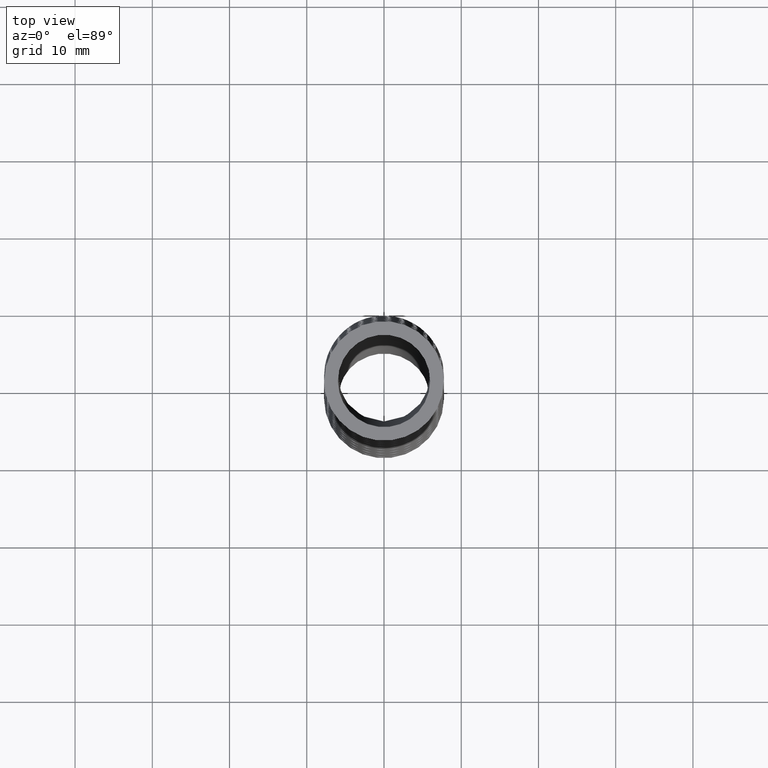
[diagram: clean part render]
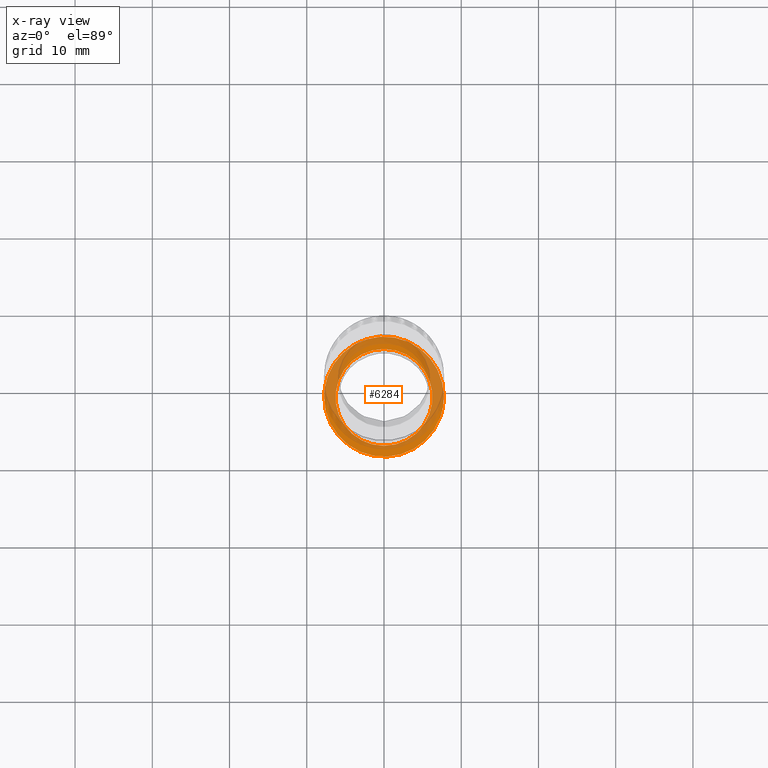
[diagram: x-ray — body ghosted, one internal face saturated and labeled with its STEP entity id]
A machine part, top view, then the same camera in x-ray: the body is ghosted and one INTERNAL B-rep face — a face not visible from any outside direction — is saturated and labeled: STEP entity #6284.
In plain terms, the highlighted planar face has unit normal (0, 0, -1).
Its self-contained STEP definition (entity closure, byte-faithful):
#2367 = DIRECTION ( 'NONE',  ( 0.0000000000000000000, -1.000000000000000000, 0.0000000000000000000 ) ) ;
#2368 = DIRECTION ( 'NONE',  ( 0.0000000000000000000, -1.734723475976807100E-018, 1.000000000000000000 ) ) ;
#2369 = CARTESIAN_POINT ( 'NONE',  ( 0.0000000000000000000, -0.02359756194168900400, -3.466374445932213900 ) ) ;
#2370 = AXIS2_PLACEMENT_3D ( 'NONE', #2369, #2368, #2367 ) ;
#2371 = CIRCLE ( 'NONE', #2370, 0.2470000000000000300 ) ;
#3394 = DIRECTION ( 'NONE',  ( 0.0000000000000000000, -1.000000000000000000, 0.0000000000000000000 ) ) ;
#3395 = DIRECTION ( 'NONE',  ( 0.0000000000000000000, -1.734723475976807100E-018, 1.000000000000000000 ) ) ;
#3396 = CARTESIAN_POINT ( 'NONE',  ( 0.0000000000000000000, -0.02359756194168900400, -3.466374445932213900 ) ) ;
#3397 = AXIS2_PLACEMENT_3D ( 'NONE', #3396, #3395, #3394 ) ;
#3398 = CIRCLE ( 'NONE', #3397, 0.2470000000000000300 ) ;
#3553 = CARTESIAN_POINT ( 'NONE',  ( 3.024877593893962500E-017, 0.2234024380583110300, -3.466374445932213900 ) ) ;
#4572 = EDGE_CURVE ( 'NONE', #10300, #5046, #3398, .T. ) ;
#5046 = VERTEX_POINT ( 'NONE', #3553 ) ;
#6284 = ADVANCED_FACE ( 'NONE', ( #8341, #8340 ), #8376, .T. ) ;
#6285 = EDGE_LOOP ( 'NONE', ( #14098, #14081 ) ) ;
#6367 = EDGE_CURVE ( 'NONE', #6385, #6382, #9157, .T. ) ;
#6382 = VERTEX_POINT ( 'NONE', #9361 ) ;
#6384 = EDGE_CURVE ( 'NONE', #6382, #6385, #9355, .T. ) ;
#6385 = VERTEX_POINT ( 'NONE', #9356 ) ;
#8340 = FACE_BOUND ( 'NONE', #14077, .T. ) ;
#8341 = FACE_OUTER_BOUND ( 'NONE', #6285, .T. ) ;
#8371 = DIRECTION ( 'NONE',  ( 0.0000000000000000000, 1.000000000000000000, 1.734723475976807100E-018 ) ) ;
#8372 = DIRECTION ( 'NONE',  ( 0.0000000000000000000, 1.734723475976807100E-018, -1.000000000000000000 ) ) ;
#8373 = CARTESIAN_POINT ( 'NONE',  ( 0.0000000000000000000, 0.3234024380583110400, -3.466374445932213900 ) ) ;
#8374 = AXIS2_PLACEMENT_3D ( 'NONE', #8373, #8372, #8371 ) ;
#8376 = PLANE ( 'NONE',  #8374 ) ;
#9115 = CARTESIAN_POINT ( 'NONE',  ( -0.2953341967208995600, 0.05885292058401765700, -3.466374445932214300 ) ) ;
#9116 = CARTESIAN_POINT ( 'NONE',  ( -0.2894639623541568900, 0.07831984641472933300, -3.466374445932213900 ) ) ;
#9117 = CARTESIAN_POINT ( 'NONE',  ( -0.2742869207531394300, 0.1151676037808288400, -3.466374445932214300 ) ) ;
#9118 = CARTESIAN_POINT ( 'NONE',  ( -0.2649590302526772000, 0.1327637769153048600, -3.466374445932215700 ) ) ;
#9119 = CARTESIAN_POINT ( 'NONE',  ( -0.2482849405159347500, 0.1578816452282285300, -3.466374445932215200 ) ) ;
#9120 = CARTESIAN_POINT ( 'NONE',  ( -0.2422849057873740200, 0.1660158824454444100, -3.466374445932212100 ) ) ;
#9121 = CARTESIAN_POINT ( 'NONE',  ( -0.2296452051057519800, 0.1815017955388762100, -3.466374445932214300 ) ) ;
#9122 = CARTESIAN_POINT ( 'NONE',  ( -0.2163076218513716200, 0.1962967479261176800, -3.466374445932212100 ) ) ;
#9123 = CARTESIAN_POINT ( 'NONE',  ( -0.2015920494492031400, 0.2097273785895566200, -3.466374445932213900 ) ) ;
#9124 = CARTESIAN_POINT ( 'NONE',  ( -0.1861764149946350000, 0.2224648906840777100, -3.466374445932213900 ) ) ;
#9125 = CARTESIAN_POINT ( 'NONE',  ( -0.1780708934028668000, 0.2285173753068214800, -3.466374445932213900 ) ) ;
#9126 = CARTESIAN_POINT ( 'NONE',  ( -0.1530620977245558400, 0.2453252029853321700, -3.466374445932213900 ) ) ;
#9127 = CARTESIAN_POINT ( 'NONE',  ( -0.1355194047079776600, 0.2547465752425284700, -3.466374445932211700 ) ) ;
#9128 = CARTESIAN_POINT ( 'NONE',  ( -0.09873129131283563100, 0.2700987033475180100, -3.466374445932210300 ) ) ;
#9129 = CARTESIAN_POINT ( 'NONE',  ( -0.07927771645859775500, 0.2760463056129382500, -3.466374445932213000 ) ) ;
#9130 = CARTESIAN_POINT ( 'NONE',  ( -0.04013136145374155600, 0.2838868633901846000, -3.466374445932212600 ) ) ;
#9131 = CARTESIAN_POINT ( 'NONE',  ( -0.02033083927069707600, 0.2858672873397024600, -3.466374445932213000 ) ) ;
#9132 = CARTESIAN_POINT ( 'NONE',  ( 0.009714611423153609100, 0.2858969932460568900, -3.466374445932213000 ) ) ;
#9133 = CARTESIAN_POINT ( 'NONE',  ( 0.01983560887148149200, 0.2854049267824099700, -3.466374445932214300 ) ) ;
#9134 = CARTESIAN_POINT ( 'NONE',  ( 0.03978567261483918100, 0.2834390177268523700, -3.466374445932213900 ) ) ;
#9135 = CARTESIAN_POINT ( 'NONE',  ( 0.04965136926137964800, 0.2819699463872702400, -3.466374445932214300 ) ) ;
#9136 = CARTESIAN_POINT ( 'NONE',  ( 0.07892763478725883800, 0.2761363106370142700, -3.466374445932214300 ) ) ;
#9137 = CARTESIAN_POINT ( 'NONE',  ( 0.09804185709230833800, 0.2703505434983909900, -3.466374445932213900 ) ) ;
#9138 = CARTESIAN_POINT ( 'NONE',  ( 0.1352975809800245100, 0.2548741471099296700, -3.466374445932214300 ) ) ;
#9139 = CARTESIAN_POINT ( 'NONE',  ( 0.1528569294215112700, 0.2454302464850278400, -3.466374445932212100 ) ) ;
#9140 = CARTESIAN_POINT ( 'NONE',  ( 0.1776586499875840700, 0.2288103508245406300, -3.466374445932214300 ) ) ;
#9141 = CARTESIAN_POINT ( 'NONE',  ( 0.1856677661477955700, 0.2228583339252810900, -3.466374445932214800 ) ) ;
#9142 = CARTESIAN_POINT ( 'NONE',  ( 0.2011579319455160900, 0.2101113305720162000, -3.466374445932214300 ) ) ;
#9143 = CARTESIAN_POINT ( 'NONE',  ( 0.2086511020055242000, 0.2032959588486030200, -3.466374445932214300 ) ) ;
#9144 = CARTESIAN_POINT ( 'NONE',  ( 0.2298412764206448400, 0.1820246891803134800, -3.466374445932215200 ) ) ;
#9145 = CARTESIAN_POINT ( 'NONE',  ( 0.2424347763952640100, 0.1666223024957307300, -3.466374445932215200 ) ) ;
#9146 = CARTESIAN_POINT ( 'NONE',  ( 0.2645845366334839100, 0.1333978123500945400, -3.466374445932213900 ) ) ;
#9147 = CARTESIAN_POINT ( 'NONE',  ( 0.2741486995455962300, 0.1154495668783508100, -3.466374445932212100 ) ) ;
#9148 = CARTESIAN_POINT ( 'NONE',  ( 0.2893644159164062700, 0.07861431787374788300, -3.466374445932212100 ) ) ;
#9149 = CARTESIAN_POINT ( 'NONE',  ( 0.2951522356180876200, 0.05956345926882655000, -3.466374445932214300 ) ) ;
#9150 = CARTESIAN_POINT ( 'NONE',  ( 0.3010411723376814100, 0.03001549319134878500, -3.466374445932213900 ) ) ;
#9151 = CARTESIAN_POINT ( 'NONE',  ( 0.3025291086875504500, 0.02000727837224377000, -3.466374445932217000 ) ) ;
#9152 = CARTESIAN_POINT ( 'NONE',  ( 0.3045038661829661000, -9.559728961624198500E-006, -3.466374445932215200 ) ) ;
#9153 = CARTESIAN_POINT ( 'NONE',  ( 0.3049999999999999400, -0.01005887854946836500, -3.466374445932212600 ) ) ;
#9154 = CARTESIAN_POINT ( 'NONE',  ( 0.3049999999999999400, -0.02014950417578876800, -3.466374445932214300 ) ) ;
#9157 = B_SPLINE_CURVE_WITH_KNOTS ( 'NONE', 3,
 ( #9154, #9153, #9152, #9151, #9150, #9149, #9148, #9147, #9146, #9145, #9144, #9143, #9142, #9141, #9140, #9139, #9138, #9137, #9136, #9135, #9134, #9133, #9132, #9131, #9130, #9129, #9128, #9127, #9126, #9125, #9124, #9123, #9122, #9121, #9120, #9119, #9118, #9117, #9116, #9115, #9177, #9176, #9175 ),
 .UNSPECIFIED., .F., .F.,
 ( 4, 2, 2, 2, 2, 2, 2, 2, 2, 2, 2, 2, 2, 2, 2, 2, 1, 2, 2, 2, 2, 4 ),
 ( 0.0000000000000000000, 0.0007662545004617646500, 0.001532509000923529300, 0.003065018001847058200, 0.004597527002770586400, 0.006130036003694113800, 0.006896290504155878700, 0.007662545004617642800, 0.009195054005541172800, 0.01072756300646470300, 0.01149381750692646800, 0.01226007200738823300, 0.01379258100831175700, 0.01532509000923528400, 0.01685759901015881200, 0.01762385351062057500, 0.01839010801108234200, 0.01915636251154410500, 0.01992261701200586900, 0.02145512601292939900, 0.02298763501385292900, 0.02452014401477645800 ),
 .UNSPECIFIED. ) ;
#9175 = CARTESIAN_POINT ( 'NONE',  ( -0.3049999999999999400, -0.02014950417578851400, -3.466374445932214300 ) ) ;
#9176 = CARTESIAN_POINT ( 'NONE',  ( -0.3050000000000000500, -0.0001376444115224724600, -3.466374445932213900 ) ) ;
#9177 = CARTESIAN_POINT ( 'NONE',  ( -0.3030624690797761900, 0.01966474000397546600, -3.466374445932214800 ) ) ;
#9355 = B_SPLINE_CURVE_WITH_KNOTS ( 'NONE', 3,
 ( #9431, #9430, #9429, #9428, #9427, #9426, #9425, #9424, #9423, #9422, #9421, #9420, #9419, #9418, #9417, #9416, #9415, #9414, #9413, #9412, #9411, #9410, #9409, #9408, #9407, #9406, #9405, #9404, #9403, #9402, #9401, #9400, #9399, #9398, #9397, #9396, #9395, #9394, #9393, #9392, #9391, #9390, #9389, #9388, #9387 ),
 .UNSPECIFIED., .F., .F.,
 ( 4, 2, 2, 2, 2, 2, 2, 2, 2, 2, 2, 1, 2, 2, 2, 2, 2, 2, 2, 2, 2, 2, 4 ),
 ( 0.02452014401477645800, 0.02528645339123039900, 0.02605276276768434000, 0.02758538152059222500, 0.02911800027350010900, 0.02988430964995405000, 0.03065061902640799100, 0.03218323777931587900, 0.03371585653222376000, 0.03524847528513164200, 0.03601478466158558600, 0.03678109403803953000, 0.03754740341449347400, 0.03831371279094741800, 0.03984633154385530700, 0.04061264092030925100, 0.04137895029676319500, 0.04291156904967106900, 0.04367787842612501400, 0.04444418780257895800, 0.04597680655548684600, 0.04750942530839472000, 0.04904204406130260200 ),
 .UNSPECIFIED. ) ;
#9356 = CARTESIAN_POINT ( 'NONE',  ( 0.3049999999999999400, -0.02014950417578876800, -3.466374445932214300 ) ) ;
#9361 = CARTESIAN_POINT ( 'NONE',  ( -0.3049999999999999400, -0.02014950417578851400, -3.466374445932214300 ) ) ;
#9387 = CARTESIAN_POINT ( 'NONE',  ( 0.3049999999999999400, -0.02014950417578876800, -3.466374445932214300 ) ) ;
#9388 = CARTESIAN_POINT ( 'NONE',  ( 0.3049999999999998300, -0.04033220072654562100, -3.466374445932213900 ) ) ;
#9389 = CARTESIAN_POINT ( 'NONE',  ( 0.3030041873257275400, -0.06037279035110201100, -3.466374445932212600 ) ) ;
#9390 = CARTESIAN_POINT ( 'NONE',  ( 0.2952600372783997200, -0.09941327716461057000, -3.466374445932213000 ) ) ;
#9391 = CARTESIAN_POINT ( 'NONE',  ( 0.2894898585911990200, -0.1185886639930379400, -3.466374445932213000 ) ) ;
#9392 = CARTESIAN_POINT ( 'NONE',  ( 0.2741204776719928800, -0.1558407087636528300, -3.466374445932213900 ) ) ;
#9393 = CARTESIAN_POINT ( 'NONE',  ( 0.2647371080622081800, -0.1734274037011797100, -3.466374445932214300 ) ) ;
#9394 = CARTESIAN_POINT ( 'NONE',  ( 0.2481985006217175500, -0.1983001348070888800, -3.466374445932214300 ) ) ;
#9395 = CARTESIAN_POINT ( 'NONE',  ( 0.2422720462270273900, -0.2063379953281135000, -3.466374445932214800 ) ) ;
#9396 = CARTESIAN_POINT ( 'NONE',  ( 0.2295697337124370000, -0.2218940133963728000, -3.466374445932213900 ) ) ;
#9397 = CARTESIAN_POINT ( 'NONE',  ( 0.2227890582283143000, -0.2294065221096870100, -3.466374445932213900 ) ) ;
#9398 = CARTESIAN_POINT ( 'NONE',  ( 0.2016153626713623200, -0.2506655191864916600, -3.466374445932213000 ) ) ;
#9399 = CARTESIAN_POINT ( 'NONE',  ( 0.1862615309357664500, -0.2633241128894460200, -3.466374445932210300 ) ) ;
#9400 = CARTESIAN_POINT ( 'NONE',  ( 0.1613744851977847400, -0.2800418189280459200, -3.466374445932211700 ) ) ;
#9401 = CARTESIAN_POINT ( 'NONE',  ( 0.1527200050998778800, -0.2852576064640086100, -3.466374445932214800 ) ) ;
#9402 = CARTESIAN_POINT ( 'NONE',  ( 0.1350043623932724300, -0.2947666997343279500, -3.466374445932213900 ) ) ;
#9403 = CARTESIAN_POINT ( 'NONE',  ( 0.1259751579509924600, -0.2990498921260601500, -3.466374445932213900 ) ) ;
#9404 = CARTESIAN_POINT ( 'NONE',  ( 0.09838723598774154500, -0.3105234724032941400, -3.466374445932213900 ) ) ;
#9405 = CARTESIAN_POINT ( 'NONE',  ( 0.07933304405736615900, -0.3163511589465789500, -3.466374445932214800 ) ) ;
#9406 = CARTESIAN_POINT ( 'NONE',  ( 0.04972551844710938100, -0.3222702311638924700, -3.466374445932214300 ) ) ;
#9407 = CARTESIAN_POINT ( 'NONE',  ( 0.03975000241313484500, -0.3237513598707341100, -3.466374445932215700 ) ) ;
#9408 = CARTESIAN_POINT ( 'NONE',  ( 0.01987340395201783000, -0.3257102256006105800, -3.466374445932216600 ) ) ;
#9409 = CARTESIAN_POINT ( 'NONE',  ( -1.435871473701418300E-005, -0.3266835928988182600, -3.466374445932207700 ) ) ;
#9410 = CARTESIAN_POINT ( 'NONE',  ( -0.01992420424380329800, -0.3257076386887921600, -3.466374445932212600 ) ) ;
#9411 = CARTESIAN_POINT ( 'NONE',  ( -0.03984528936016273200, -0.3237395318788937600, -3.466374445932213000 ) ) ;
#9412 = CARTESIAN_POINT ( 'NONE',  ( -0.04986466146970299600, -0.3222460394123050100, -3.466374445932213000 ) ) ;
#9413 = CARTESIAN_POINT ( 'NONE',  ( -0.07937347503674165000, -0.3163357661817729500, -3.466374445932213900 ) ) ;
#9414 = CARTESIAN_POINT ( 'NONE',  ( -0.09840945761624284000, -0.3105174464625880500, -3.466374445932213900 ) ) ;
#9415 = CARTESIAN_POINT ( 'NONE',  ( -0.1352327068569355600, -0.2951965337159513900, -3.466374445932214300 ) ) ;
#9416 = CARTESIAN_POINT ( 'NONE',  ( -0.1531580446077232000, -0.2855655066096768900, -3.466374445932210300 ) ) ;
#9417 = CARTESIAN_POINT ( 'NONE',  ( -0.1862740186377482600, -0.2633113634684416400, -3.466374445932210300 ) ) ;
#9418 = CARTESIAN_POINT ( 'NONE',  ( -0.2016318854085918700, -0.2506546502198251900, -3.466374445932213900 ) ) ;
#9419 = CARTESIAN_POINT ( 'NONE',  ( -0.2228460194269960800, -0.2293464580571935600, -3.466374445932213900 ) ) ;
#9420 = CARTESIAN_POINT ( 'NONE',  ( -0.2296322075454438900, -0.2218211619160584400, -3.466374445932214300 ) ) ;
#9421 = CARTESIAN_POINT ( 'NONE',  ( -0.2422992301655986500, -0.2063010205155448300, -3.466374445932214300 ) ) ;
#9422 = CARTESIAN_POINT ( 'NONE',  ( -0.2482158556493308800, -0.1982754031210885400, -3.466374445932211700 ) ) ;
#9423 = CARTESIAN_POINT ( 'NONE',  ( -0.2647411790094964000, -0.1734185387505786700, -3.466374445932211700 ) ) ;
#9424 = CARTESIAN_POINT ( 'NONE',  ( -0.2741549868391202100, -0.1557719713359259400, -3.466374445932213900 ) ) ;
#9425 = CARTESIAN_POINT ( 'NONE',  ( -0.2895214279115832500, -0.1184971772919843800, -3.466374445932213000 ) ) ;
#9426 = CARTESIAN_POINT ( 'NONE',  ( -0.2952623491088758900, -0.09940631213304905500, -3.466374445932214300 ) ) ;
#9427 = CARTESIAN_POINT ( 'NONE',  ( -0.3010711013614555400, -0.07011568518176422600, -3.466374445932214300 ) ) ;
#9428 = CARTESIAN_POINT ( 'NONE',  ( -0.3025368085688293600, -0.06024228518220656900, -3.466374445932214300 ) ) ;
#9429 = CARTESIAN_POINT ( 'NONE',  ( -0.3045043679492736600, -0.04027045419124146400, -3.466374445932215200 ) ) ;
#9430 = CARTESIAN_POINT ( 'NONE',  ( -0.3049999999999999400, -0.03015615064141896600, -3.466374445932212600 ) ) ;
#9431 = CARTESIAN_POINT ( 'NONE',  ( -0.3049999999999999400, -0.02014950417578851400, -3.466374445932214300 ) ) ;
#10300 = VERTEX_POINT ( 'NONE', #15740 ) ;
#14077 = EDGE_LOOP ( 'NONE', ( #14078, #14080 ) ) ;
#14078 = ORIENTED_EDGE ( 'NONE', *, *, #4572, .T. ) ;
#14080 = ORIENTED_EDGE ( 'NONE', *, *, #14082, .T. ) ;
#14081 = ORIENTED_EDGE ( 'NONE', *, *, #6384, .F. ) ;
#14082 = EDGE_CURVE ( 'NONE', #5046, #10300, #2371, .T. ) ;
#14098 = ORIENTED_EDGE ( 'NONE', *, *, #6367, .F. ) ;
#15740 = CARTESIAN_POINT ( 'NONE',  ( 0.0000000000000000000, -0.2705975619416890500, -3.466374445932213900 ) ) ;